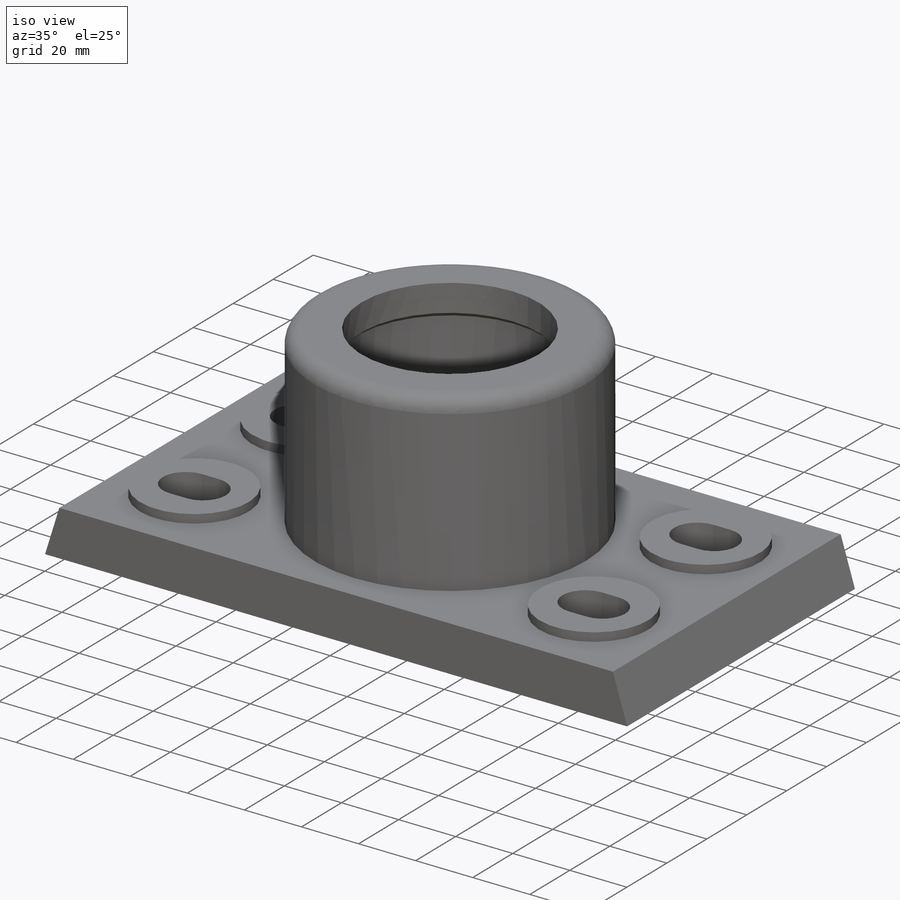
[diagram: iso view]
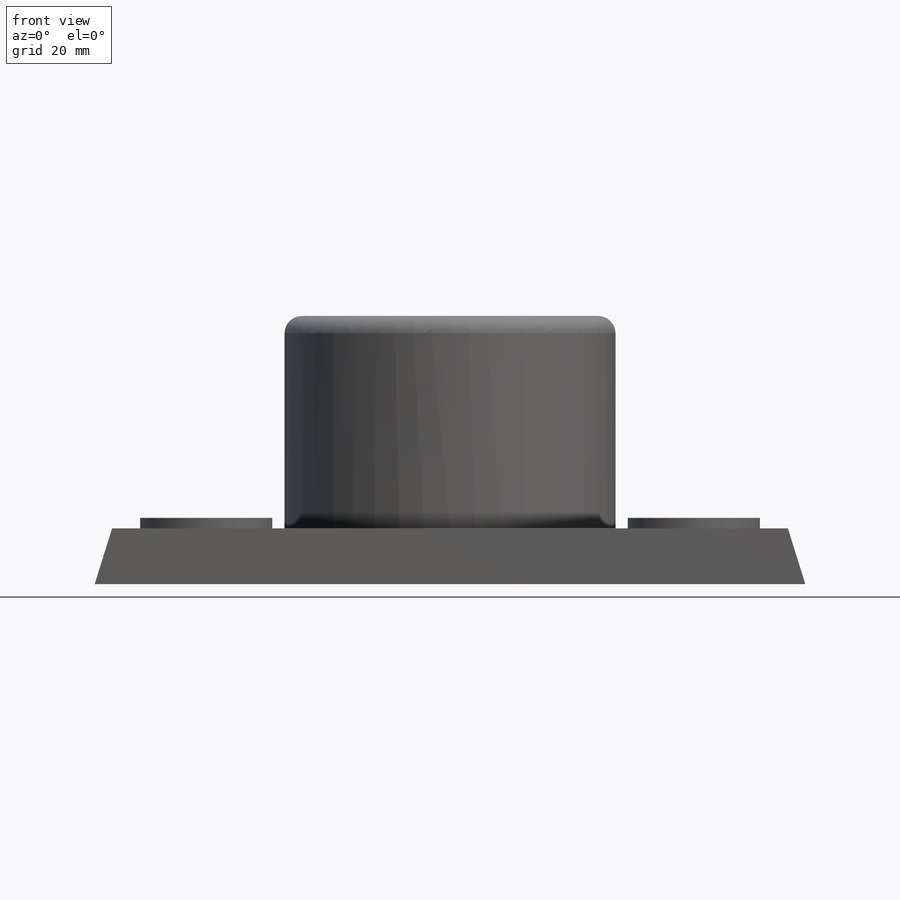
[diagram: front view]
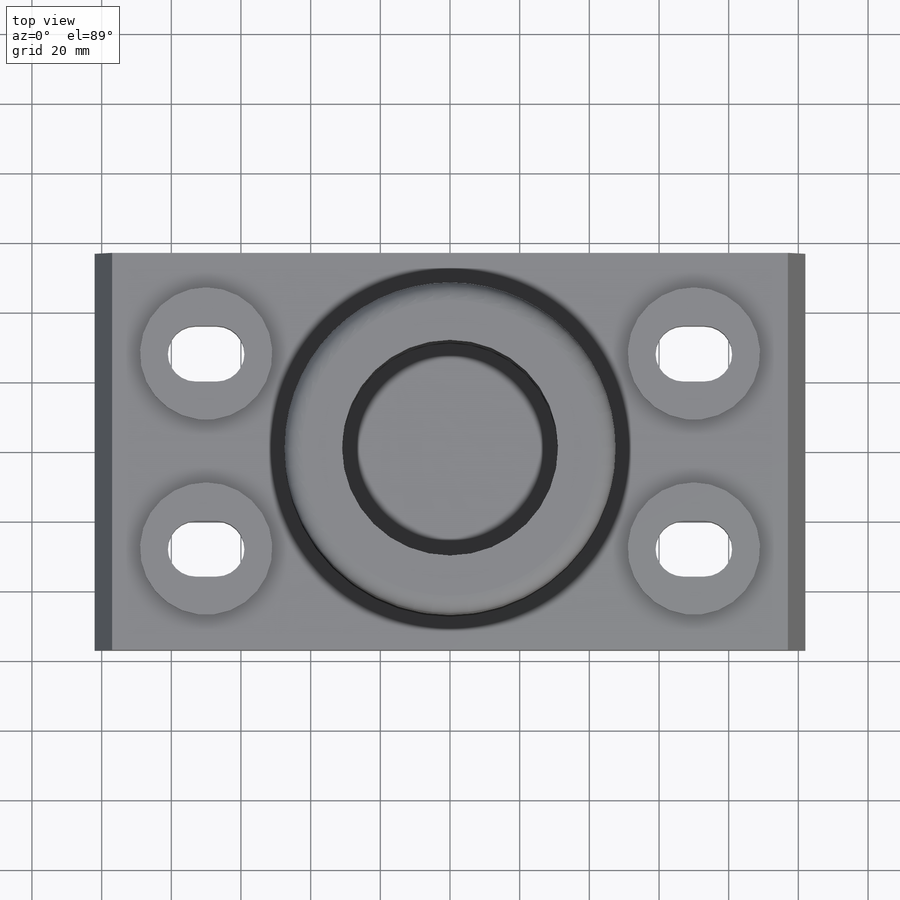
[diagram: top view]
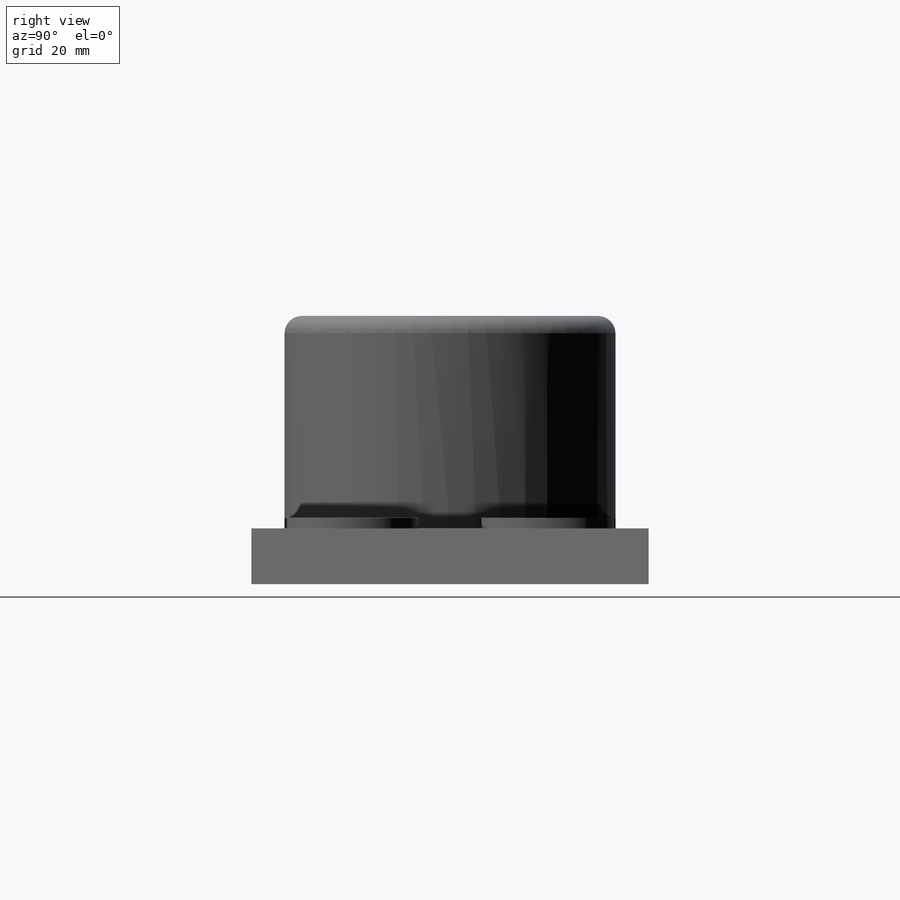
[diagram: right view]
SOLIDWORKS PART (.sldprt)
format: sldprt  version: not decoded by parser v0  size: 349,696 bytes
history: native  units: mm
features: sketch x6, mirror x5, cut_extrude x3, extrude x2, chamfer x2, material x1, revolve x1, fillet x1 (+12 scaffold rows collapsed)
feature tree (33):
  scaffold x12  (default folders/planes/origin — collapsed)
  material  "Material <not specified>"
  sketch  "Sketch1"  dims[D1=62.0mm D2=61.0mm D3=11.0mm D4=37.0mm D5=13.0mm D6=95.0mm D7=65.0mm D8=62.0mm]
  revolve  "Revolve2"  Angle=360deg
  sketch  "Sketch2"  dims[D1=204.0mm D2=114.0mm]
  extrude  "Boss-Extrude1"  Depth=16mm
  sketch  "Sketch3"  dims[D1=5.0mm]
  cut_extrude  "Cut-Extrude1"  [1 undecoded]
  mirror  "Mirror1"
  sketch  "Sketch4"  dims[c1.D3=38.0mm c1.D4=~12.075743mm c1.D1=70.0mm c1.D2=28.0mm c2.D4=0.0mm c2.D5=~7.700771mm c3.D4=22.0mm c3.D5=16.0mm c3.D6=0.0mm c3.D7=2.0 c3.D8=2.0]
  extrude  "Boss-Extrude2"  Depth=3mm
  mirror  "Mirror2"
  sketch  "Sketch10"  dims[c1.D1=8.0mm c1.D3=~14.709424mm c2.D1=28.0mm c2.D2=70.0mm c2.D3=22.0mm c2.D4=16.0mm]
  cut_extrude  "Cut-Extrude2"  [1 undecoded]
  mirror  "Mirror5"
  mirror  "Mirror6"
  sketch  "Sketch11"  dims[D1=10.0mm D2=10.0mm D3=10.0mm D4=6.5mm]
  cut_extrude  "Cut-Extrude4"  Depth=3mm
  mirror  "Mirror8"
  chamfer  "Chamfer1"  Distance=1.5mm Angle=45deg
  chamfer  "Chamfer2"  Distance=1.5mm Angle=45deg
  fillet  "Fillet1"  Radius=5mm
decode coverage: 13 of 20 modeling features carry decoded parameters
note: ~ marks probable driven/reference dimensions
note: 2 parameter values undecoded
note: suppression state not decoded; provenance and decode notes live in map.json
